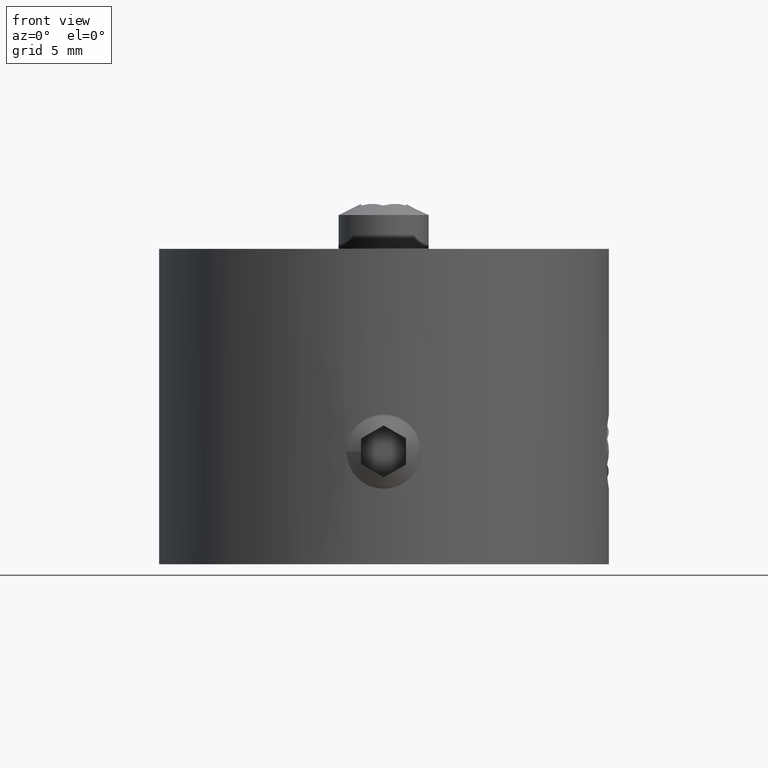
[diagram: clean part render]
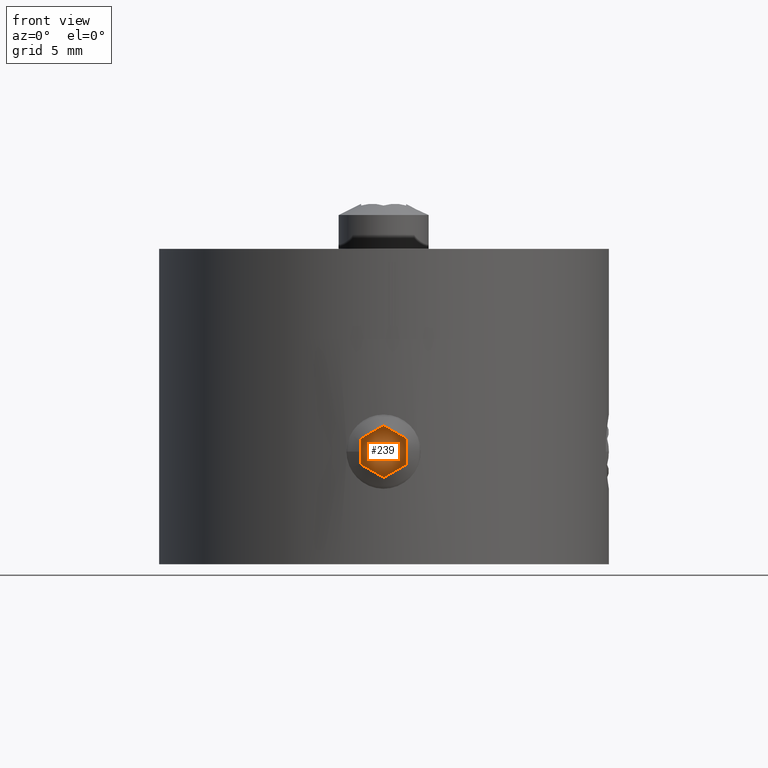
[diagram: same view with one face highlighted and labeled with its STEP entity id]
A machine part, front view. The second image highlights one B-rep face of the part: STEP entity #239.
In plain terms, the highlighted planar face has unit normal (0, -1, 0).
Its self-contained STEP definition (entity closure, byte-faithful):
#239 = ADVANCED_FACE( '', ( #291 ), #292, .T. );
#291 = FACE_OUTER_BOUND( '', #351, .T. );
#292 = PLANE( '', #352 );
#351 = EDGE_LOOP( '', ( #450, #451, #452, #453, #454, #455 ) );
#352 = AXIS2_PLACEMENT_3D( '', #456, #457, #458 );
#450 = ORIENTED_EDGE( '', *, *, #519, .T. );
#451 = ORIENTED_EDGE( '', *, *, #522, .T. );
#452 = ORIENTED_EDGE( '', *, *, #523, .T. );
#453 = ORIENTED_EDGE( '', *, *, #524, .T. );
#454 = ORIENTED_EDGE( '', *, *, #525, .T. );
#455 = ORIENTED_EDGE( '', *, *, #526, .T. );
#456 = CARTESIAN_POINT( '', ( 1.00000000000000, 0.577350269189626, 3.50000000000000 ) );
#457 = DIRECTION( '', ( 0.000000000000000, -0.000000000000000, 1.00000000000000 ) );
#458 = DIRECTION( '', ( 1.00000000000000, 0.000000000000000, -0.000000000000000 ) );
#519 = EDGE_CURVE( '', #573, #571, #574, .T. );
#522 = EDGE_CURVE( '', #571, #576, #578, .T. );
#523 = EDGE_CURVE( '', #576, #579, #580, .T. );
#524 = EDGE_CURVE( '', #579, #581, #582, .T. );
#525 = EDGE_CURVE( '', #581, #583, #584, .T. );
#526 = EDGE_CURVE( '', #583, #573, #585, .T. );
#571 = VERTEX_POINT( '', #865 );
#573 = VERTEX_POINT( '', #868 );
#574 = LINE( '', #869, #870 );
#576 = VERTEX_POINT( '', #873 );
#578 = LINE( '', #876, #877 );
#579 = VERTEX_POINT( '', #878 );
#580 = LINE( '', #879, #880 );
#581 = VERTEX_POINT( '', #881 );
#582 = LINE( '', #882, #883 );
#583 = VERTEX_POINT( '', #884 );
#584 = LINE( '', #885, #886 );
#585 = LINE( '', #887, #888 );
#865 = CARTESIAN_POINT( '', ( 1.00000000000000, 0.577350269189626, 3.50000000000000 ) );
#868 = CARTESIAN_POINT( '', ( 1.00000000000000, -0.577350269189626, 3.50000000000000 ) );
#869 = CARTESIAN_POINT( '', ( 1.00000000000000, -0.577350269189626, 3.50000000000000 ) );
#870 = VECTOR( '', #928, 1000.00000000000 );
#873 = CARTESIAN_POINT( '', ( 0.000000000000000, 1.15470053837925, 3.50000000000000 ) );
#876 = CARTESIAN_POINT( '', ( 1.00000000000000, 0.577350269189626, 3.50000000000000 ) );
#877 = VECTOR( '', #931, 1000.00000000000 );
#878 = CARTESIAN_POINT( '', ( -1.00000000000000, 0.577350269189626, 3.50000000000000 ) );
#879 = CARTESIAN_POINT( '', ( 7.07026808030676E-017, 1.15470053837925, 3.50000000000000 ) );
#880 = VECTOR( '', #932, 1000.00000000000 );
#881 = CARTESIAN_POINT( '', ( -1.00000000000000, -0.577350269189626, 3.50000000000000 ) );
#882 = CARTESIAN_POINT( '', ( -1.00000000000000, 0.577350269189626, 3.50000000000000 ) );
#883 = VECTOR( '', #933, 1000.00000000000 );
#884 = CARTESIAN_POINT( '', ( -2.16840434497101E-016, -1.15470053837925, 3.50000000000000 ) );
#885 = CARTESIAN_POINT( '', ( -1.00000000000000, -0.577350269189626, 3.50000000000000 ) );
#886 = VECTOR( '', #934, 1000.00000000000 );
#887 = CARTESIAN_POINT( '', ( -2.12108042409203E-016, -1.15470053837925, 3.50000000000000 ) );
#888 = VECTOR( '', #935, 1000.00000000000 );
#928 = DIRECTION( '', ( 3.75578649684290E-016, 1.00000000000000, 0.000000000000000 ) );
#931 = DIRECTION( '', ( -0.866025403784439, 0.500000000000000, 0.000000000000000 ) );
#932 = DIRECTION( '', ( -0.866025403784439, -0.500000000000000, 0.000000000000000 ) );
#933 = DIRECTION( '', ( 1.87789324842145E-016, -1.00000000000000, 0.000000000000000 ) );
#934 = DIRECTION( '', ( 0.866025403784439, -0.500000000000000, 0.000000000000000 ) );
#935 = DIRECTION( '', ( 0.866025403784439, 0.500000000000000, 0.000000000000000 ) );